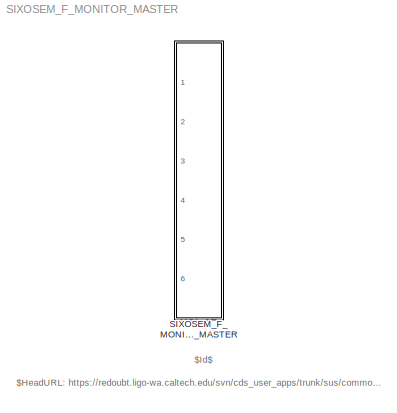
MODEL SIXOSEM_F_MONITOR_MASTER
KIND library
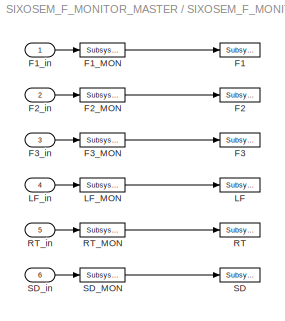
BLOCK [SubSystem] SIXOSEM_F_MONITOR_MASTER
  FunctionWithSeparateData = off
  MaskHideContents = off
  MinAlgLoopOccurrences = off
  Opaque = off
  Ports = [6]
  PropExecContextOutsideSubsystem = off
  RTWSystemCode = Auto
  RequestExecContextInheritance = off
  SID = 1
BLOCK [Reference] SIXOSEM_F_MONITOR_MASTER/F1  REF=cdsTP/Subsystem
  AttributesFormatString = %<Tag>
  FunctionWithSeparateData = off
  Ports = [1]
  RTWMemSecDataConstants = Inherit from model
  RTWMemSecDataInternal = Inherit from model
  RTWMemSecDataParameters = Inherit from model
  RTWMemSecFuncExecute = Inherit from model
  RTWMemSecFuncInitTerm = Inherit from model
  SID = 8
  ShowPortLabels = FromPortIcon
  SourceBlock = cdsTP/Subsystem
  SourceType = SubSystem
  SystemSampleTime = -1
  Tag = Test Point
BLOCK [Reference] SIXOSEM_F_MONITOR_MASTER/F1_MON  REF=cdsEpicsOut/Subsystem
  AttributesFormatString = %<Tag>
  Description = Purpose:                                          \nOutput a FE signal to an EPICS channel.           \n                                                  \nOperation:                                        \nTakes input value and passes it to EPICS record.  \n                                                  \nUsage:                                            \nName the part with the desired EPICS...<+14ch>  <repeated x6 — deduplicated; at blocks: F1_MON, F2_MON, F3_MON, LF_MON, RT_MON, SD_MON>
  FunctionWithSeparateData = off
  Ports = [1, 1]
  RTWMemSecDataConstants = Inherit from model
  RTWMemSecDataInternal = Inherit from model
  RTWMemSecDataParameters = Inherit from model
  RTWMemSecFuncExecute = Inherit from model
  RTWMemSecFuncInitTerm = Inherit from model
  SID = 9
  ShowPortLabels = FromPortIcon
  SourceBlock = cdsEpicsOut/Subsystem
  SourceType = SubSystem
  SystemSampleTime = -1
  Tag = cdsEpicsOutput
BLOCK [Inport] SIXOSEM_F_MONITOR_MASTER/F1_in
  IconDisplay = Port number
  SID = 2
BLOCK [Reference] SIXOSEM_F_MONITOR_MASTER/F2  REF=cdsTP/Subsystem
  AttributesFormatString = %<Tag>
  FunctionWithSeparateData = off
  Ports = [1]
  RTWMemSecDataConstants = Inherit from model
  RTWMemSecDataInternal = Inherit from model
  RTWMemSecDataParameters = Inherit from model
  RTWMemSecFuncExecute = Inherit from model
  RTWMemSecFuncInitTerm = Inherit from model
  SID = 10
  ShowPortLabels = FromPortIcon
  SourceBlock = cdsTP/Subsystem
  SourceType = SubSystem
  SystemSampleTime = -1
  Tag = Test Point
BLOCK [Reference] SIXOSEM_F_MONITOR_MASTER/F2_MON  REF=cdsEpicsOut/Subsystem
  AttributesFormatString = %<Tag>
  FunctionWithSeparateData = off
  Ports = [1, 1]
  RTWMemSecDataConstants = Inherit from model
  RTWMemSecDataInternal = Inherit from model
  RTWMemSecDataParameters = Inherit from model
  RTWMemSecFuncExecute = Inherit from model
  RTWMemSecFuncInitTerm = Inherit from model
  SID = 11
  ShowPortLabels = FromPortIcon
  SourceBlock = cdsEpicsOut/Subsystem
  SourceType = SubSystem
  SystemSampleTime = -1
  Tag = cdsEpicsOutput
BLOCK [Inport] SIXOSEM_F_MONITOR_MASTER/F2_in
  IconDisplay = Port number
  Port = 2
  SID = 3
BLOCK [Reference] SIXOSEM_F_MONITOR_MASTER/F3  REF=cdsTP/Subsystem
  AttributesFormatString = %<Tag>
  FunctionWithSeparateData = off
  Ports = [1]
  RTWMemSecDataConstants = Inherit from model
  RTWMemSecDataInternal = Inherit from model
  RTWMemSecDataParameters = Inherit from model
  RTWMemSecFuncExecute = Inherit from model
  RTWMemSecFuncInitTerm = Inherit from model
  SID = 12
  ShowPortLabels = FromPortIcon
  SourceBlock = cdsTP/Subsystem
  SourceType = SubSystem
  SystemSampleTime = -1
  Tag = Test Point
BLOCK [Reference] SIXOSEM_F_MONITOR_MASTER/F3_MON  REF=cdsEpicsOut/Subsystem
  AttributesFormatString = %<Tag>
  FunctionWithSeparateData = off
  Ports = [1, 1]
  RTWMemSecDataConstants = Inherit from model
  RTWMemSecDataInternal = Inherit from model
  RTWMemSecDataParameters = Inherit from model
  RTWMemSecFuncExecute = Inherit from model
  RTWMemSecFuncInitTerm = Inherit from model
  SID = 13
  ShowPortLabels = FromPortIcon
  SourceBlock = cdsEpicsOut/Subsystem
  SourceType = SubSystem
  SystemSampleTime = -1
  Tag = cdsEpicsOutput
BLOCK [Inport] SIXOSEM_F_MONITOR_MASTER/F3_in
  IconDisplay = Port number
  Port = 3
  SID = 4
BLOCK [Reference] SIXOSEM_F_MONITOR_MASTER/LF  REF=cdsTP/Subsystem
  AttributesFormatString = %<Tag>
  FunctionWithSeparateData = off
  Ports = [1]
  RTWMemSecDataConstants = Inherit from model
  RTWMemSecDataInternal = Inherit from model
  RTWMemSecDataParameters = Inherit from model
  RTWMemSecFuncExecute = Inherit from model
  RTWMemSecFuncInitTerm = Inherit from model
  SID = 14
  ShowPortLabels = FromPortIcon
  SourceBlock = cdsTP/Subsystem
  SourceType = SubSystem
  SystemSampleTime = -1
  Tag = Test Point
BLOCK [Reference] SIXOSEM_F_MONITOR_MASTER/LF_MON  REF=cdsEpicsOut/Subsystem
  AttributesFormatString = %<Tag>
  FunctionWithSeparateData = off
  Ports = [1, 1]
  RTWMemSecDataConstants = Inherit from model
  RTWMemSecDataInternal = Inherit from model
  RTWMemSecDataParameters = Inherit from model
  RTWMemSecFuncExecute = Inherit from model
  RTWMemSecFuncInitTerm = Inherit from model
  SID = 15
  ShowPortLabels = FromPortIcon
  SourceBlock = cdsEpicsOut/Subsystem
  SourceType = SubSystem
  SystemSampleTime = -1
  Tag = cdsEpicsOutput
BLOCK [Inport] SIXOSEM_F_MONITOR_MASTER/LF_in
  IconDisplay = Port number
  Port = 4
  SID = 5
BLOCK [Reference] SIXOSEM_F_MONITOR_MASTER/RT  REF=cdsTP/Subsystem
  AttributesFormatString = %<Tag>
  FunctionWithSeparateData = off
  Ports = [1]
  RTWMemSecDataConstants = Inherit from model
  RTWMemSecDataInternal = Inherit from model
  RTWMemSecDataParameters = Inherit from model
  RTWMemSecFuncExecute = Inherit from model
  RTWMemSecFuncInitTerm = Inherit from model
  SID = 16
  ShowPortLabels = FromPortIcon
  SourceBlock = cdsTP/Subsystem
  SourceType = SubSystem
  SystemSampleTime = -1
  Tag = Test Point
BLOCK [Reference] SIXOSEM_F_MONITOR_MASTER/RT_MON  REF=cdsEpicsOut/Subsystem
  AttributesFormatString = %<Tag>
  FunctionWithSeparateData = off
  Ports = [1, 1]
  RTWMemSecDataConstants = Inherit from model
  RTWMemSecDataInternal = Inherit from model
  RTWMemSecDataParameters = Inherit from model
  RTWMemSecFuncExecute = Inherit from model
  RTWMemSecFuncInitTerm = Inherit from model
  SID = 17
  ShowPortLabels = FromPortIcon
  SourceBlock = cdsEpicsOut/Subsystem
  SourceType = SubSystem
  SystemSampleTime = -1
  Tag = cdsEpicsOutput
BLOCK [Inport] SIXOSEM_F_MONITOR_MASTER/RT_in
  IconDisplay = Port number
  Port = 5
  SID = 6
BLOCK [Reference] SIXOSEM_F_MONITOR_MASTER/SD  REF=cdsTP/Subsystem
  AttributesFormatString = %<Tag>
  FunctionWithSeparateData = off
  Ports = [1]
  RTWMemSecDataConstants = Inherit from model
  RTWMemSecDataInternal = Inherit from model
  RTWMemSecDataParameters = Inherit from model
  RTWMemSecFuncExecute = Inherit from model
  RTWMemSecFuncInitTerm = Inherit from model
  SID = 18
  ShowPortLabels = FromPortIcon
  SourceBlock = cdsTP/Subsystem
  SourceType = SubSystem
  SystemSampleTime = -1
  Tag = Test Point
BLOCK [Reference] SIXOSEM_F_MONITOR_MASTER/SD_MON  REF=cdsEpicsOut/Subsystem
  AttributesFormatString = %<Tag>
  FunctionWithSeparateData = off
  Ports = [1, 1]
  RTWMemSecDataConstants = Inherit from model
  RTWMemSecDataInternal = Inherit from model
  RTWMemSecDataParameters = Inherit from model
  RTWMemSecFuncExecute = Inherit from model
  RTWMemSecFuncInitTerm = Inherit from model
  SID = 19
  ShowPortLabels = FromPortIcon
  SourceBlock = cdsEpicsOut/Subsystem
  SourceType = SubSystem
  SystemSampleTime = -1
  Tag = cdsEpicsOutput
BLOCK [Inport] SIXOSEM_F_MONITOR_MASTER/SD_in
  IconDisplay = Port number
  Port = 6
  SID = 7
ANNOTATION (root): $HeadURL: https://redoubt.ligo-wa.caltech.edu/svn/cds_user_apps/trunk/sus/common/models/SIXOSEM_F_MONITOR_MASTER.mdl $
ANNOTATION (root): $Id$
LINE SIXOSEM_F_MONITOR_MASTER/F1_MON:1 -> SIXOSEM_F_MONITOR_MASTER/F1:1
LINE SIXOSEM_F_MONITOR_MASTER/F1_in:1 -> SIXOSEM_F_MONITOR_MASTER/F1_MON:1
LINE SIXOSEM_F_MONITOR_MASTER/F2_MON:1 -> SIXOSEM_F_MONITOR_MASTER/F2:1
LINE SIXOSEM_F_MONITOR_MASTER/F2_in:1 -> SIXOSEM_F_MONITOR_MASTER/F2_MON:1
LINE SIXOSEM_F_MONITOR_MASTER/F3_MON:1 -> SIXOSEM_F_MONITOR_MASTER/F3:1
LINE SIXOSEM_F_MONITOR_MASTER/F3_in:1 -> SIXOSEM_F_MONITOR_MASTER/F3_MON:1
LINE SIXOSEM_F_MONITOR_MASTER/LF_MON:1 -> SIXOSEM_F_MONITOR_MASTER/LF:1
LINE SIXOSEM_F_MONITOR_MASTER/LF_in:1 -> SIXOSEM_F_MONITOR_MASTER/LF_MON:1
LINE SIXOSEM_F_MONITOR_MASTER/RT_MON:1 -> SIXOSEM_F_MONITOR_MASTER/RT:1
LINE SIXOSEM_F_MONITOR_MASTER/RT_in:1 -> SIXOSEM_F_MONITOR_MASTER/RT_MON:1
LINE SIXOSEM_F_MONITOR_MASTER/SD_MON:1 -> SIXOSEM_F_MONITOR_MASTER/SD:1
LINE SIXOSEM_F_MONITOR_MASTER/SD_in:1 -> SIXOSEM_F_MONITOR_MASTER/SD_MON:1
